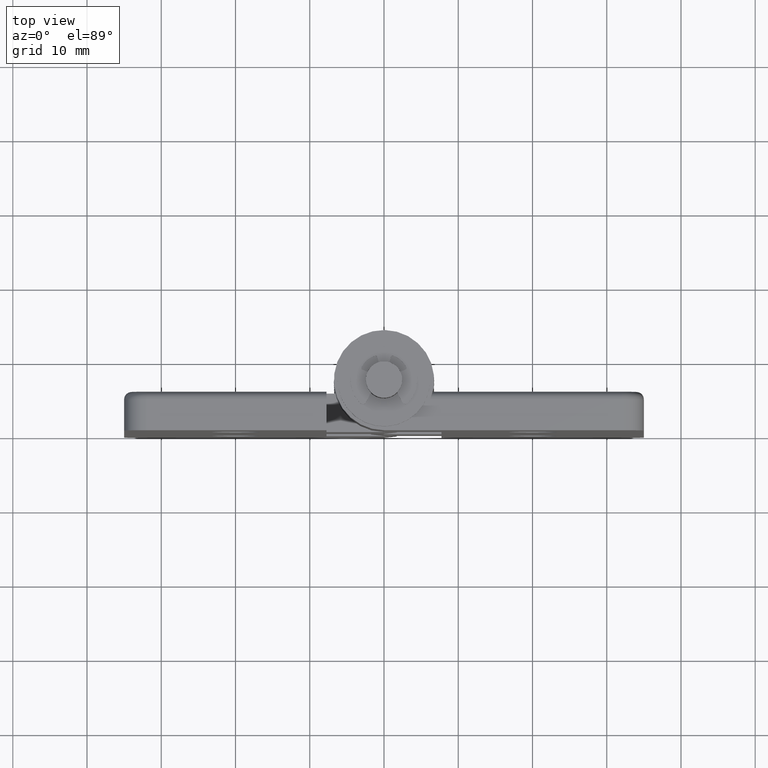
[diagram: clean part render]
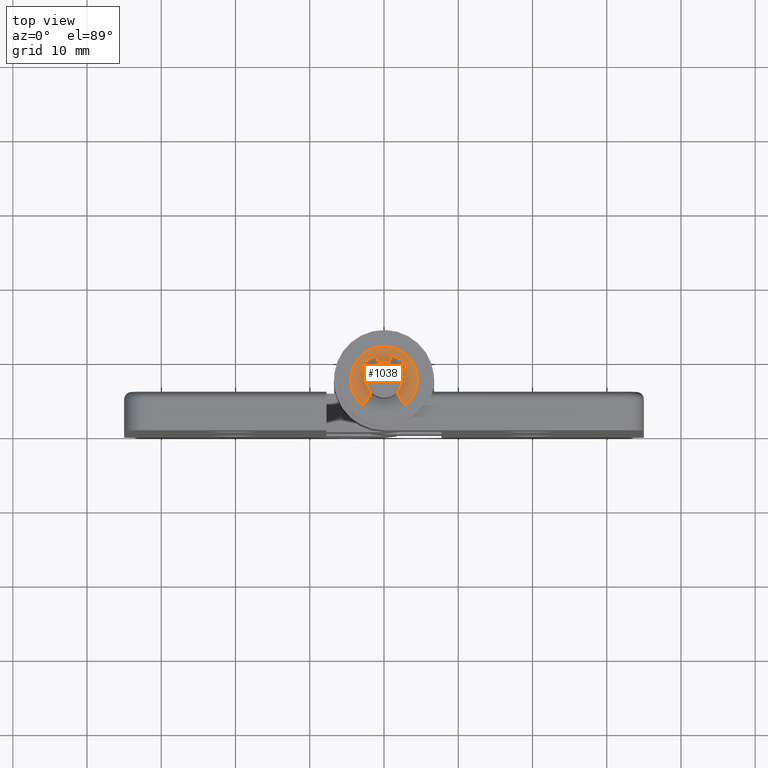
[diagram: same view with one face highlighted and labeled with its STEP entity id]
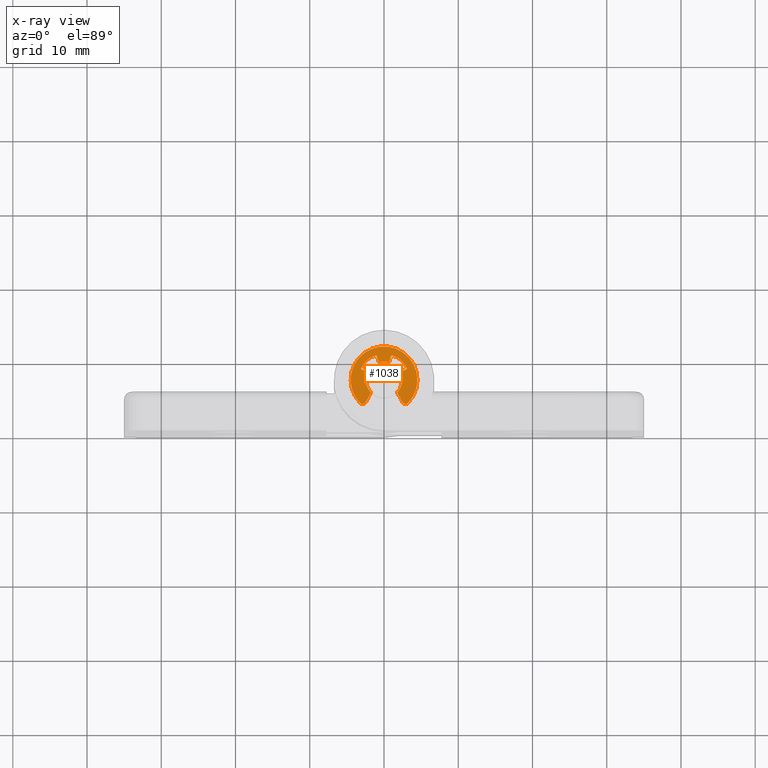
[diagram: x-ray of the same camera — body ghosted, the highlighted face saturated]
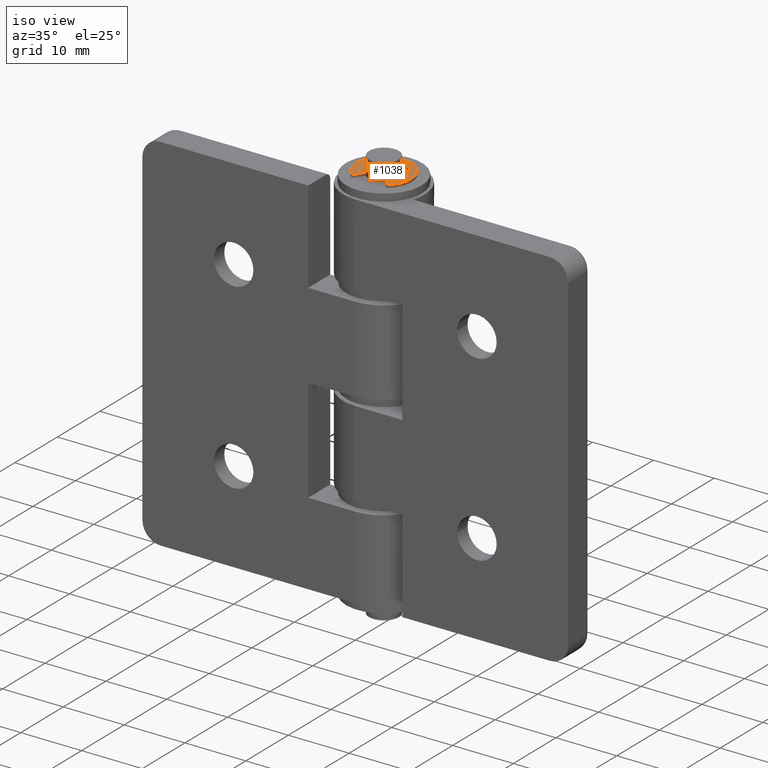
[diagram: same view with one face highlighted and labeled with its STEP entity id]
A machine part, top view. The second image highlights one B-rep face of the part: STEP entity #1038.
The next image is the same camera in x-ray: the body ghosted, the highlighted face saturated — about 0% of this face is hidden behind the body in this view.
A second angle (iso view) of the same face is appended — the face is thin or edge-on in the first view.
In plain terms, the highlighted planar face has unit normal (0, -0, 1).
Its self-contained STEP definition (entity closure, byte-faithful):
#109=PLANE('',#1152);
#163=FACE_OUTER_BOUND('',#242,.T.);
#242=EDGE_LOOP('',(#863,#864,#865,#866,#867,#868,#869,#870,#871,#872,#873,
#874,#875,#876,#877,#878,#879,#880));
#296=LINE('',#1713,#369);
#301=LINE('',#1728,#374);
#308=LINE('',#1764,#381);
#311=LINE('',#1774,#384);
#312=LINE('',#1777,#385);
#313=LINE('',#1780,#386);
#369=VECTOR('',#1375,0.798793090103954);
#374=VECTOR('',#1388,0.808789599519452);
#381=VECTOR('',#1427,1.46755971244607);
#384=VECTOR('',#1436,1.46755971244608);
#385=VECTOR('',#1439,0.798793090103954);
#386=VECTOR('',#1442,0.808789599519454);
#439=CIRCLE('',#1130,0.2);
#441=CIRCLE('',#1134,0.2);
#443=CIRCLE('',#1138,0.2);
#444=CIRCLE('',#1140,3.);
#447=CIRCLE('',#1144,0.2);
#448=CIRCLE('',#1146,3.);
#450=CIRCLE('',#1149,0.5);
#452=CIRCLE('',#1153,4.5);
#453=CIRCLE('',#1154,0.5);
#454=CIRCLE('',#1155,2.45);
#455=CIRCLE('',#1156,2.45);
#456=CIRCLE('',#1157,2.45);
#516=VERTEX_POINT('',#1703);
#517=VERTEX_POINT('',#1705);
#519=VERTEX_POINT('',#1711);
#522=VERTEX_POINT('',#1718);
#523=VERTEX_POINT('',#1720);
#525=VERTEX_POINT('',#1726);
#528=VERTEX_POINT('',#1733);
#529=VERTEX_POINT('',#1735);
#532=VERTEX_POINT('',#1745);
#533=VERTEX_POINT('',#1747);
#534=VERTEX_POINT('',#1754);
#535=VERTEX_POINT('',#1755);
#538=VERTEX_POINT('',#1763);
#540=VERTEX_POINT('',#1769);
#541=VERTEX_POINT('',#1771);
#542=VERTEX_POINT('',#1773);
#543=VERTEX_POINT('',#1775);
#544=VERTEX_POINT('',#1778);
#627=EDGE_CURVE('',#516,#517,#439,.T.);
#631=EDGE_CURVE('',#516,#519,#296,.T.);
#634=EDGE_CURVE('',#522,#523,#441,.T.);
#638=EDGE_CURVE('',#522,#525,#301,.T.);
#641=EDGE_CURVE('',#528,#529,#443,.T.);
#643=EDGE_CURVE('',#528,#517,#444,.T.);
#647=EDGE_CURVE('',#532,#533,#447,.T.);
#649=EDGE_CURVE('',#532,#523,#448,.T.);
#651=EDGE_CURVE('',#534,#535,#450,.T.);
#655=EDGE_CURVE('',#538,#535,#308,.T.);
#658=EDGE_CURVE('',#534,#540,#452,.T.);
#659=EDGE_CURVE('',#541,#540,#453,.T.);
#660=EDGE_CURVE('',#541,#542,#311,.T.);
#661=EDGE_CURVE('',#542,#543,#454,.T.);
#662=EDGE_CURVE('',#543,#533,#312,.T.);
#663=EDGE_CURVE('',#525,#544,#455,.T.);
#664=EDGE_CURVE('',#544,#529,#313,.T.);
#665=EDGE_CURVE('',#519,#538,#456,.T.);
#863=ORIENTED_EDGE('',*,*,#651,.F.);
#864=ORIENTED_EDGE('',*,*,#658,.T.);
#865=ORIENTED_EDGE('',*,*,#659,.F.);
#866=ORIENTED_EDGE('',*,*,#660,.T.);
#867=ORIENTED_EDGE('',*,*,#661,.T.);
#868=ORIENTED_EDGE('',*,*,#662,.T.);
#869=ORIENTED_EDGE('',*,*,#647,.F.);
#870=ORIENTED_EDGE('',*,*,#649,.T.);
#871=ORIENTED_EDGE('',*,*,#634,.F.);
#872=ORIENTED_EDGE('',*,*,#638,.T.);
#873=ORIENTED_EDGE('',*,*,#663,.T.);
#874=ORIENTED_EDGE('',*,*,#664,.T.);
#875=ORIENTED_EDGE('',*,*,#641,.F.);
#876=ORIENTED_EDGE('',*,*,#643,.T.);
#877=ORIENTED_EDGE('',*,*,#627,.F.);
#878=ORIENTED_EDGE('',*,*,#631,.T.);
#879=ORIENTED_EDGE('',*,*,#665,.T.);
#880=ORIENTED_EDGE('',*,*,#655,.T.);
#1038=ADVANCED_FACE('',(#163),#109,.T.);
#1130=AXIS2_PLACEMENT_3D('',#1706,#1368,#1369);
#1134=AXIS2_PLACEMENT_3D('',#1721,#1381,#1382);
#1138=AXIS2_PLACEMENT_3D('',#1736,#1394,#1395);
#1140=AXIS2_PLACEMENT_3D('',#1739,#1399,#1400);
#1144=AXIS2_PLACEMENT_3D('',#1748,#1408,#1409);
#1146=AXIS2_PLACEMENT_3D('',#1751,#1413,#1414);
#1149=AXIS2_PLACEMENT_3D('',#1756,#1419,#1420);
#1152=AXIS2_PLACEMENT_3D('',#1768,#1430,#1431);
#1153=AXIS2_PLACEMENT_3D('',#1770,#1432,#1433);
#1154=AXIS2_PLACEMENT_3D('',#1772,#1434,#1435);
#1155=AXIS2_PLACEMENT_3D('',#1776,#1437,#1438);
#1156=AXIS2_PLACEMENT_3D('',#1779,#1440,#1441);
#1157=AXIS2_PLACEMENT_3D('',#1781,#1443,#1444);
#1368=DIRECTION('center_axis',(4.44089209850063E-16,-5.89805981832115E-17,
1.));
#1369=DIRECTION('ref_axis',(0.933711287865826,-0.358026857808099,0.));
#1375=DIRECTION('',(-0.921614003216785,-0.388107754463541,3.86388006957493E-16));
#1381=DIRECTION('center_axis',(4.44089209850063E-16,-5.89805981832115E-17,
1.));
#1382=DIRECTION('ref_axis',(0.464765067382234,0.885434036019165,-9.75778287698649E-16));
#1388=DIRECTION('',(0.302878745401321,-0.95302910007204,-1.90715409133908E-16));
#1394=DIRECTION('center_axis',(4.44089209850063E-16,-5.89805981832115E-17,
1.));
#1395=DIRECTION('ref_axis',(-0.471972586142102,0.881613224679812,9.75778287698645E-16));
#1399=DIRECTION('center_axis',(-4.44089209850063E-16,5.89805981832115E-17,
-1.));
#1400=DIRECTION('ref_axis',(0.932155740018298,0.362057559444543,-3.92605934609134E-16));
#1408=DIRECTION('center_axis',(4.44089209850063E-16,-5.89805981832115E-17,
1.));
#1409=DIRECTION('ref_axis',(-0.930759593744413,-0.365631752796082,0.));
#1413=DIRECTION('center_axis',(-4.44089209850063E-16,5.89805981832115E-17,
-1.));
#1414=DIRECTION('ref_axis',(-0.22832816352784,0.973584228374723,1.58820653898876E-16));
#1419=DIRECTION('center_axis',(-4.44089209850063E-16,5.89805981832115E-17,
-1.));
#1420=DIRECTION('ref_axis',(-0.129467951409742,-0.991583606942836,4.71069825677143E-16));
#1427=DIRECTION('',(0.479635871890804,-0.877467623559723,-2.64754680687687E-16));
#1430=DIRECTION('center_axis',(4.44089209850063E-16,-5.89805981832115E-17,
1.));
#1431=DIRECTION('ref_axis',(1.,0.,-4.44089209850063E-16));
#1432=DIRECTION('center_axis',(4.44089209850063E-16,-5.89805981832115E-17,
1.));
#1433=DIRECTION('ref_axis',(-0.614334592518965,0.789045631401985,3.19357747109247E-16));
#1434=DIRECTION('center_axis',(-4.44089209850063E-16,5.89805981832115E-17,
-1.));
#1435=DIRECTION('ref_axis',(0.137552548378749,-0.990494470673366,-4.71069825677143E-16));
#1436=DIRECTION('',(0.472461916145315,0.881351086566697,-1.57832624730092E-16));
#1437=DIRECTION('center_axis',(-4.44089209850063E-16,5.89805981832115E-17,
-1.));
#1438=DIRECTION('ref_axis',(-0.901616355652423,0.432536642632788,4.25909364888217E-16));
#1439=DIRECTION('',(-0.92474935102224,0.38057671734349,4.33117851048347E-16));
#1440=DIRECTION('center_axis',(-4.44089209850063E-16,5.89805981832115E-17,
-1.));
#1441=DIRECTION('ref_axis',(0.28221627332446,0.959350809178193,-6.87461172346109E-17));
#1442=DIRECTION('',(0.295094273543179,0.955468141657284,-7.46941002291206E-17));
#1443=DIRECTION('center_axis',(-4.44089209850063E-16,5.89805981832115E-17,
-1.));
#1444=DIRECTION('ref_axis',(0.717134348402959,-0.696934951297941,-3.5957726646095E-16));
#1703=CARTESIAN_POINT('',(2.93642078006631,8.03771703543198,1.49999999999999));
#1705=CARTESIAN_POINT('',(3.03975712656346,8.30721165871782,1.49999999999999));
#1706=CARTESIAN_POINT('Origin',(2.8587992291736,8.22203983607534,1.49999999999999));
#1711=CARTESIAN_POINT('',(2.2002418825537,7.72769924295074,1.49999999999999));
#1713=CARTESIAN_POINT('',(2.2002418825537,7.72769924295074,1.49999999999999));
#1718=CARTESIAN_POINT('',(-0.955545653805963,9.7654909183262,1.5));
#1720=CARTESIAN_POINT('',(-1.20455695556271,9.89619715925662,1.5));
#1721=CARTESIAN_POINT('Origin',(-1.14615147382037,9.70491516924594,1.5));
#1726=CARTESIAN_POINT('',(-0.710580474609874,8.99469089414856,1.5));
#1728=CARTESIAN_POINT('',(-0.949167803338718,9.74542256693648,1.5));
#1733=CARTESIAN_POINT('',(1.17803582098017,9.90591539516122,1.49999999999999));
#1735=CARTESIAN_POINT('',(0.93009904896441,9.77318217813116,1.49999999999999));
#1736=CARTESIAN_POINT('Origin',(1.12119267729587,9.71416332342252,1.49999999999999));
#1739=CARTESIAN_POINT('Origin',(0.325388665715586,7.02963431908065,1.49999999999999));
#1745=CARTESIAN_POINT('',(-3.05317479027774,8.28235951012511,1.5));
#1747=CARTESIAN_POINT('',(-2.9476434630231,8.01371682651875,1.5));
#1748=CARTESIAN_POINT('Origin',(-2.87152811955441,8.19866669672319,1.5));
#1751=CARTESIAN_POINT('Origin',(-0.328474729427676,7.02696730909643,1.5));
#1754=CARTESIAN_POINT('',(3.26205815354776,3.55016506844757,1.49999999999999));
#1755=CARTESIAN_POINT('',(2.46087343581815,3.65477323600799,1.49999999999999));
#1756=CARTESIAN_POINT('Origin',(2.89960724759802,3.89459117195339,1.49999999999999));
#1763=CARTESIAN_POINT('',(1.75697915358726,4.94250936932004,1.49999999999999));
#1764=CARTESIAN_POINT('',(2.76450566633536,3.09929465869106,1.49999999999999));
#1768=CARTESIAN_POINT('Origin',(-0.00324433015667937,7.44540337072802,1.5));
#1769=CARTESIAN_POINT('',(-3.23666251773168,3.52365776884378,1.5));
#1770=CARTESIAN_POINT('Origin',(1.1297386637299E-14,6.64999999999999,1.5));
#1771=CARTESIAN_POINT('',(-2.43635780581148,3.63479816978848,1.5));
#1772=CARTESIAN_POINT('Origin',(-2.87703334909482,3.87102912786114,1.5));
#1773=CARTESIAN_POINT('',(-1.74299173201154,4.92823351695434,1.5));
#1774=CARTESIAN_POINT('',(-1.74299173201154,4.92823351695434,1.5));
#1775=CARTESIAN_POINT('',(-2.20896007134842,7.70971477445032,1.5));
#1776=CARTESIAN_POINT('Origin',(1.18091258058254E-14,6.64999999999999,1.5));
#1777=CARTESIAN_POINT('',(-3.13370942237066,8.09029149179381,1.5));
#1778=CARTESIAN_POINT('',(0.691429869644938,9.00040948248656,1.49999999999999));
#1779=CARTESIAN_POINT('Origin',(1.18091258058254E-14,6.64999999999999,1.5));
#1780=CARTESIAN_POINT('',(0.986524143188117,9.95587762414385,1.49999999999999));
#1781=CARTESIAN_POINT('Origin',(1.18091258058254E-14,6.64999999999999,1.5));